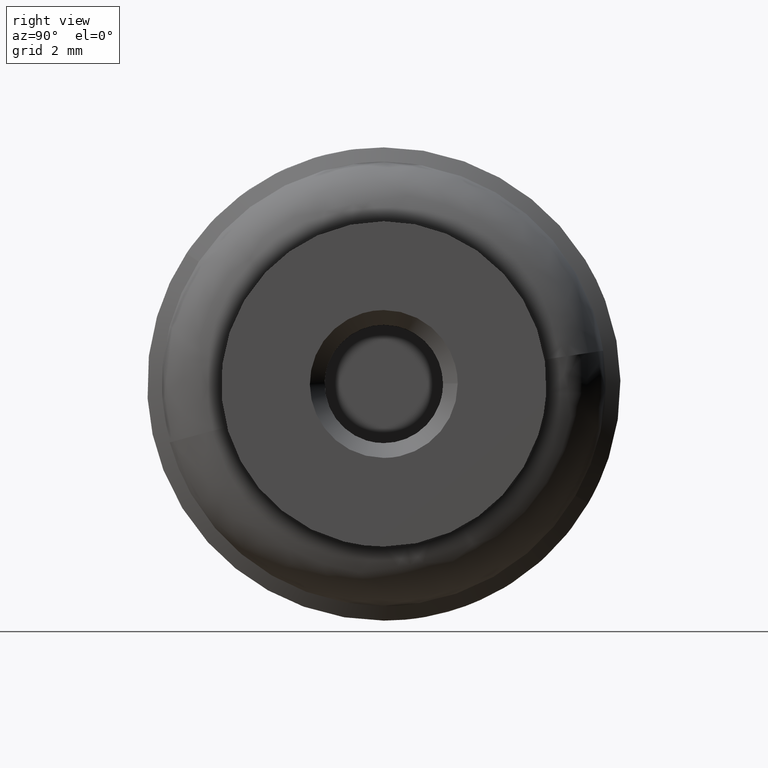
[diagram: clean part render]
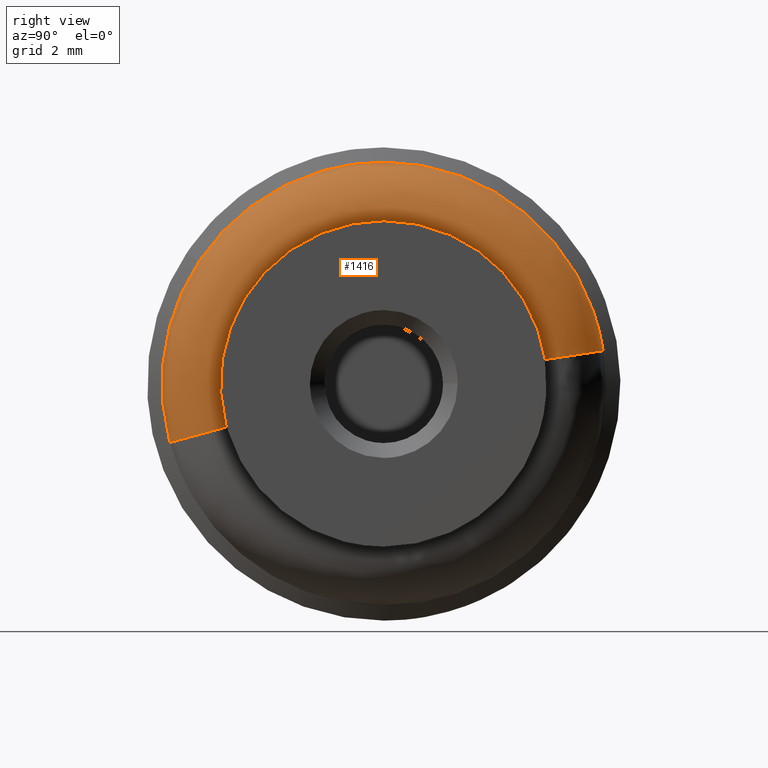
[diagram: same view with one face highlighted and labeled with its STEP entity id]
A machine part, right view. The second image highlights one B-rep face of the part: STEP entity #1416.
In plain terms, the highlighted face is a freeform B-spline surface patch.
Its self-contained STEP definition (entity closure, byte-faithful):
#831=CARTESIAN_POINT('',(-4.199983455616563,-7.235172686703242,-1.975302114240025));
#832=VERTEX_POINT('',#831);
#846=CARTESIAN_POINT('',(-4.199982202593474,-6.254118242242861,4.139510562563499));
#847=VERTEX_POINT('',#846);
#848=CARTESIAN_POINT('',(-4.199983455616562,-7.235172686703242,-1.975302114240024));
#849=CARTESIAN_POINT('',(-4.199983356196207,-7.499969458242560,-1.005399602471947));
#850=CARTESIAN_POINT('',(-4.199983225994080,-7.499969439185107,-0.000000068448903));
#851=CARTESIAN_POINT('',(-4.199982933675716,-7.499969396398991,2.257234529080395));
#852=CARTESIAN_POINT('',(-4.199982202593474,-6.254118242242862,4.139510562563499));
#860=(BOUNDED_CURVE()B_SPLINE_CURVE(2,(#848,#849,#850,#851,#852),.UNSPECIFIED.,.F.,.U.)B_SPLINE_CURVE_WITH_KNOTS((3,2,3),(0.705098081791202,0.750000000000000,0.844612687079646),.UNSPECIFIED.)CURVE()GEOMETRIC_REPRESENTATION_ITEM()RATIONAL_B_SPLINE_CURVE((0.913685096727516,0.947394130579707,1.0,0.889154342162610,0.862207928638072))REPRESENTATION_ITEM(''));
#861=EDGE_CURVE('',#832,#847,#860,.T.);
#897=CARTESIAN_POINT('',(-4.199981281684672,7.414858370735436,1.126682139408405));
#898=VERTEX_POINT('',#897);
#919=CARTESIAN_POINT('',(-4.199981513081445,0.0,7.499969188469150));
#920=VERTEX_POINT('',#919);
#921=CARTESIAN_POINT('',(-4.199982202593474,-6.254118242242861,4.139510562563499));
#922=CARTESIAN_POINT('',(-4.199981911581711,-4.029878791257073,7.499969172544867));
#923=CARTESIAN_POINT('',(-4.199981513081445,0.0,7.499969188469150));
#931=(BOUNDED_CURVE()B_SPLINE_CURVE(2,(#921,#922,#923),.UNSPECIFIED.,.F.,.U.)B_SPLINE_CURVE_WITH_KNOTS((3,3),(0.844612687079647,1.0),.UNSPECIFIED.)CURVE()GEOMETRIC_REPRESENTATION_ITEM()RATIONAL_B_SPLINE_CURVE((0.862207928638071,0.817952439023939,1.0))REPRESENTATION_ITEM(''));
#932=EDGE_CURVE('',#847,#920,#931,.T.);
#934=CARTESIAN_POINT('',(-4.199981513081445,0.0,7.499969188469150));
#935=CARTESIAN_POINT('',(-4.199981513081446,6.446442243933843,7.499969188469149));
#936=CARTESIAN_POINT('',(-4.199981281684673,7.414858370735436,1.126682139408405));
#944=(BOUNDED_CURVE()B_SPLINE_CURVE(2,(#934,#935,#936),.UNSPECIFIED.,.F.,.U.)B_SPLINE_CURVE_WITH_KNOTS((3,3),(0.0,0.224102531366545),.UNSPECIFIED.)CURVE()GEOMETRIC_REPRESENTATION_ITEM()RATIONAL_B_SPLINE_CURVE((1.0,0.737447552975240,0.945604449908315))REPRESENTATION_ITEM(''));
#945=EDGE_CURVE('',#920,#898,#944,.T.);
#1322=CARTESIAN_POINT('',(-2.504117027206456,-5.203883451869830,-1.420731751339843));
#1323=CARTESIAN_POINT('',(-2.504117027206458,-5.286180436124139,-1.119292782234014));
#1324=CARTESIAN_POINT('',(-2.504117027206457,-5.333121604997489,-0.810367593267910));
#1325=CARTESIAN_POINT('',(-2.504117027206456,-6.143489198265396,4.522754011729579));
#1326=CARTESIAN_POINT('',(-2.504117027206457,-0.810367593267910,5.333121604997489));
#1327=CARTESIAN_POINT('',(-2.504117027206456,4.522754011729579,6.143489198265399));
#1328=CARTESIAN_POINT('',(-2.504117027206457,5.333121604997489,0.810367593267911));
#1329=CARTESIAN_POINT('',(-2.378636247305888,-7.087547486214188,-1.934997938736556));
#1330=CARTESIAN_POINT('',(-2.378636247305888,-7.199633736659528,-1.524446275254285));
#1331=CARTESIAN_POINT('',(-2.378636247305888,-7.263566329794127,-1.103698584277803));
#1332=CARTESIAN_POINT('',(-2.378636247305890,-8.367264914071928,6.159867745516325));
#1333=CARTESIAN_POINT('',(-2.378636247305888,-1.103698584277804,7.263566329794127));
#1334=CARTESIAN_POINT('',(-2.378636247305890,6.159867745516325,8.367264914071928));
#1335=CARTESIAN_POINT('',(-2.378636247305888,7.263566329794127,1.103698584277804));
#1336=CARTESIAN_POINT('',(-4.328020004280145,-7.249857870630550,-1.979310905936011));
#1337=CARTESIAN_POINT('',(-4.328020004280143,-7.364510983934017,-1.559357288046777));
#1338=CARTESIAN_POINT('',(-4.328020004280144,-7.429907683487458,-1.128974145653916));
#1339=CARTESIAN_POINT('',(-4.328020004280144,-8.558881829141372,6.300933537833540));
#1340=CARTESIAN_POINT('',(-4.328020004280144,-1.128974145653917,7.429907683487458));
#1341=CARTESIAN_POINT('',(-4.328020004280144,6.300933537833540,8.558881829141372));
#1342=CARTESIAN_POINT('',(-4.328020004280144,7.429907683487458,1.128974145653917));
#1350=(BOUNDED_SURFACE()B_SPLINE_SURFACE(2,2,((#1322,#1329,#1336),(#1323,#1330,#1337),(#1324,#1331,#1338),(#1325,#1332,#1339),(#1326,#1333,#1340),(#1327,#1334,#1341),(#1328,#1335,#1342)),.UNSPECIFIED.,.F.,.F.,.U.)B_SPLINE_SURFACE_WITH_KNOTS((3,2,2,3),(3,3),(0.0,0.996125274182844,13.447703076218341,25.899280878253840),(0.0,3.262453909014189),.UNSPECIFIED.)GEOMETRIC_REPRESENTATION_ITEM()RATIONAL_B_SPLINE_SURFACE(((0.878158919262362,0.626181375093031,0.873857238417675),(0.896221969927374,0.639061442306029,0.891831806830401),(0.917725597765254,0.654394852869487,0.913230098672788),(0.648929993448289,0.462727038037587,0.645751195555188),(0.917725597765254,0.654394852869487,0.913230098672788),(0.648929993448289,0.462727038037587,0.645751195555188),(0.917725597765254,0.654394852869487,0.913230098672788)))REPRESENTATION_ITEM('')SURFACE());
#1351=ORIENTED_EDGE('',*,*,#932,.F.);
#1352=ORIENTED_EDGE('',*,*,#861,.F.);
#1353=CARTESIAN_POINT('',(-2.499999999999986,-5.327616891499149,-1.454513327603542));
#1354=VERTEX_POINT('',#1353);
#1355=CARTESIAN_POINT('',(-2.499999999999987,-5.327616891499150,-1.454513327603542));
#1356=CARTESIAN_POINT('',(-2.500000000430188,-6.986349038829505,-1.907370217298042));
#1357=CARTESIAN_POINT('',(-4.199983455616562,-7.235172686703242,-1.975302114240024));
#1365=(BOUNDED_CURVE()B_SPLINE_CURVE(2,(#1355,#1356,#1357),.UNSPECIFIED.,.F.,.U.)B_SPLINE_CURVE_WITH_KNOTS((3,3),(-1.715024460164734,-0.298390170119472),.UNSPECIFIED.)CURVE()GEOMETRIC_REPRESENTATION_ITEM()RATIONAL_B_SPLINE_CURVE((0.856303089773713,0.647841784577513,0.852392130787603))REPRESENTATION_ITEM(''));
#1366=EDGE_CURVE('',#1354,#832,#1365,.T.);
#1367=ORIENTED_EDGE('',*,*,#1366,.F.);
#1368=CARTESIAN_POINT('',(-2.499999999999970,0.0,5.522600000000000));
#1369=VERTEX_POINT('',#1368);
#1370=CARTESIAN_POINT('',(-2.499999999999986,-5.327616891499149,-1.454513327603542));
#1371=CARTESIAN_POINT('',(-2.499999999999970,-5.522600000000001,-0.740325781811865));
#1372=CARTESIAN_POINT('',(-2.499999999999970,-5.522600000000000,0.0));
#1373=CARTESIAN_POINT('',(-2.499999999999971,-5.522600000000000,5.522600000000000));
#1374=CARTESIAN_POINT('',(-2.499999999999970,0.0,5.522600000000000));
#1382=(BOUNDED_CURVE()B_SPLINE_CURVE(2,(#1370,#1371,#1372,#1373,#1374),.UNSPECIFIED.,.F.,.U.)B_SPLINE_CURVE_WITH_KNOTS((3,2,3),(0.705098073247440,0.750000000000000,1.0),.UNSPECIFIED.)CURVE()GEOMETRIC_REPRESENTATION_ITEM()RATIONAL_B_SPLINE_CURVE((0.913685083899470,0.947394120570068,1.0,0.707106781186547,1.0))REPRESENTATION_ITEM(''));
#1383=EDGE_CURVE('',#1354,#1369,#1382,.T.);
#1384=ORIENTED_EDGE('',*,*,#1383,.T.);
#1385=CARTESIAN_POINT('',(-2.499999999999986,5.459928125681590,0.829635838541538));
#1386=VERTEX_POINT('',#1385);
#1387=CARTESIAN_POINT('',(-2.499999999999970,0.0,5.522600000000000));
#1388=CARTESIAN_POINT('',(-2.499999999999971,4.746832427537843,5.522600000000000));
#1389=CARTESIAN_POINT('',(-2.499999999999986,5.459928125681590,0.829635838541538));
#1397=(BOUNDED_CURVE()B_SPLINE_CURVE(2,(#1387,#1388,#1389),.UNSPECIFIED.,.F.,.U.)B_SPLINE_CURVE_WITH_KNOTS((3,3),(0.0,0.224102415374495),.UNSPECIFIED.)CURVE()GEOMETRIC_REPRESENTATION_ITEM()RATIONAL_B_SPLINE_CURVE((1.0,0.737447688868379,0.945604234430776))REPRESENTATION_ITEM(''));
#1398=EDGE_CURVE('',#1369,#1386,#1397,.T.);
#1399=ORIENTED_EDGE('',*,*,#1398,.T.);
#1400=CARTESIAN_POINT('',(-2.499999999999986,5.459928125681590,0.829635838541538));
#1401=CARTESIAN_POINT('',(-2.500000000342966,7.159853345546105,1.087936768983391));
#1402=CARTESIAN_POINT('',(-4.199981281684672,7.414858370735437,1.126682139408404));
#1410=(BOUNDED_CURVE()B_SPLINE_CURVE(2,(#1400,#1401,#1402),.UNSPECIFIED.,.F.,.U.)B_SPLINE_CURVE_WITH_KNOTS((3,3),(-1.715024460220143,-0.298391361908812),.UNSPECIFIED.)CURVE()GEOMETRIC_REPRESENTATION_ITEM()RATIONAL_B_SPLINE_CURVE((0.894885058432211,0.677031412232521,0.890797525864921))REPRESENTATION_ITEM(''));
#1411=EDGE_CURVE('',#1386,#898,#1410,.T.);
#1412=ORIENTED_EDGE('',*,*,#1411,.T.);
#1413=ORIENTED_EDGE('',*,*,#945,.F.);
#1414=EDGE_LOOP('',(#1351,#1352,#1367,#1384,#1399,#1412,#1413));
#1415=FACE_OUTER_BOUND('',#1414,.T.);
#1416=ADVANCED_FACE('',(#1415),#1350,.T.);